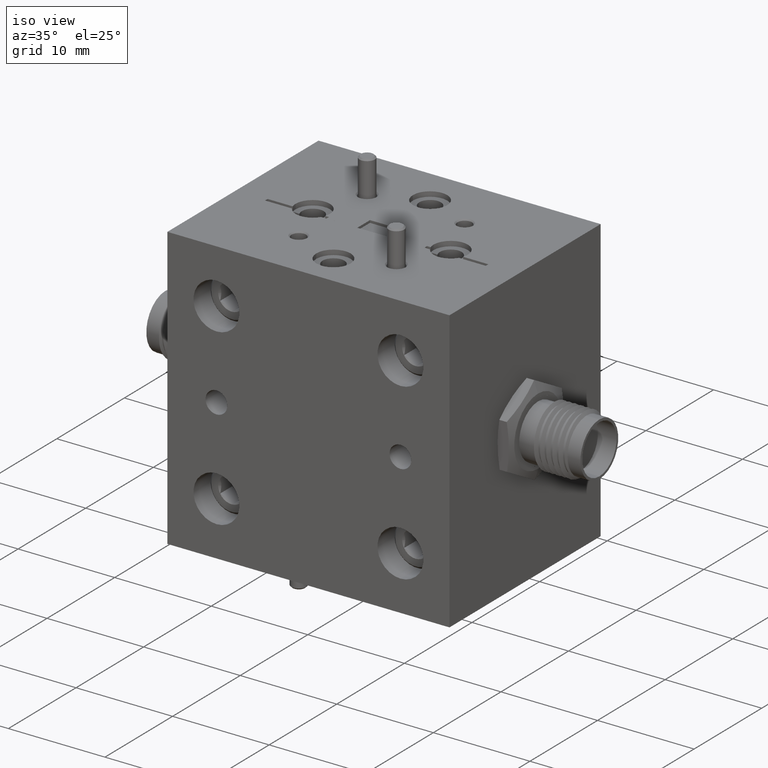
[diagram: clean part render]
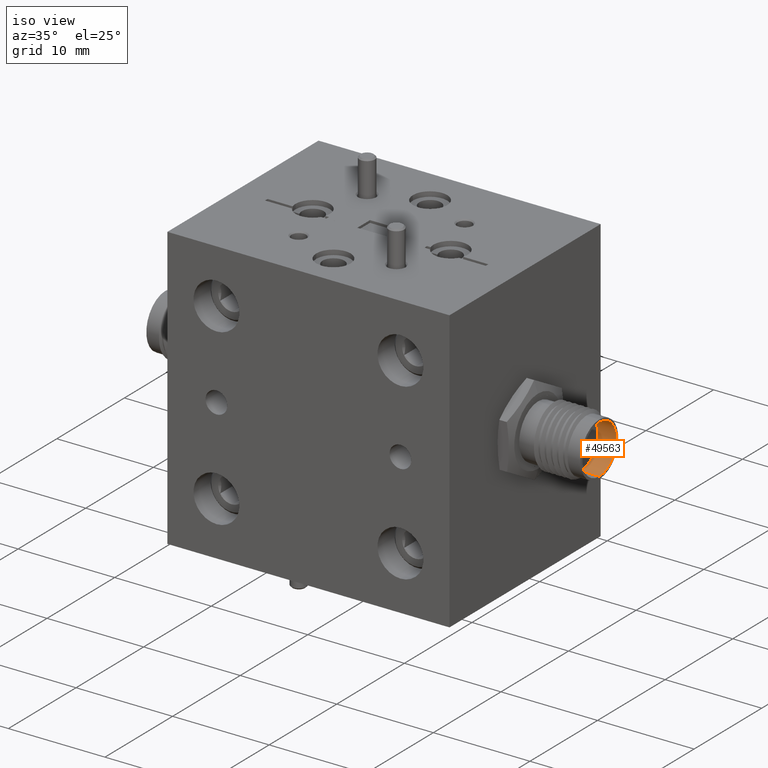
[diagram: same view with one face highlighted and labeled with its STEP entity id]
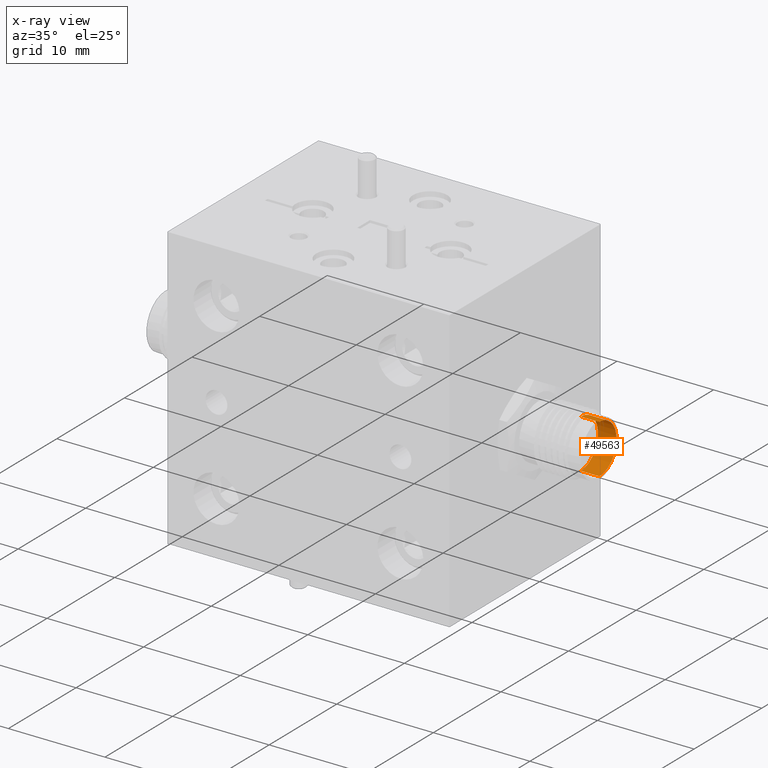
[diagram: x-ray of the same camera — body ghosted, the highlighted face saturated]
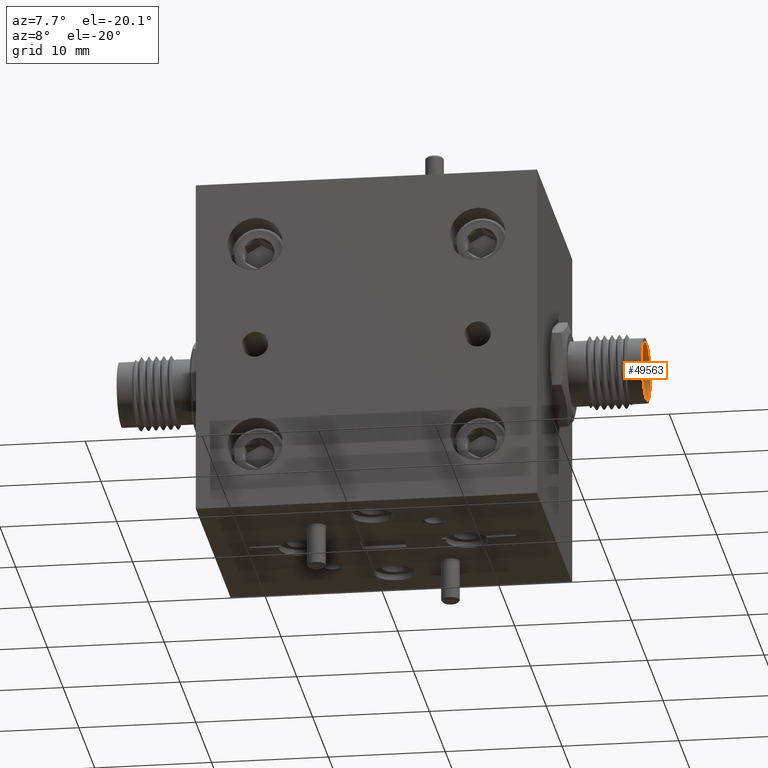
[diagram: same view with one face highlighted and labeled with its STEP entity id]
A machine part, iso view. The second image highlights one B-rep face of the part: STEP entity #49563.
The next image is the same camera in x-ray: the body ghosted, the highlighted face saturated — about 0% of this face is hidden behind the body in this view.
A second angle (auxiliary view) of the same face is appended — the face is thin or edge-on in the first view.
In plain terms, the highlighted cylindrical surface (edge-blend (fillet) strip) has radius 2.54 mm, axis along (1, 0, 0).
Its self-contained STEP definition (entity closure, byte-faithful):
#210 = VERTEX_POINT ( 'NONE', #12783 ) ;
#1971 = ORIENTED_EDGE ( 'NONE', *, *, #42961, .T. ) ;
#2467 = CARTESIAN_POINT ( 'NONE',  ( 0.8089999999999999414, 0.04000000000000127065, -0.09999999999999768796 ) ) ;
#2747 = CARTESIAN_POINT ( 'NONE',  ( 0.8089999999999999414, 0.04000000000000127759, 2.322070794614623834E-15 ) ) ;
#5723 = DIRECTION ( 'NONE',  ( 0.0000000000000000000, 0.0000000000000000000, 1.000000000000000000 ) ) ;
#9556 = DIRECTION ( 'NONE',  ( 1.000000000000000000, 1.999249380464845640E-17, 4.580144369132161867E-18 ) ) ;
#9702 = DIRECTION ( 'NONE',  ( 0.0000000000000000000, 0.0000000000000000000, 1.000000000000000000 ) ) ;
#9766 = VERTEX_POINT ( 'NONE', #21569 ) ;
#11035 = ORIENTED_EDGE ( 'NONE', *, *, #36503, .T. ) ;
#11288 = CARTESIAN_POINT ( 'NONE',  ( 0.8089999999999999414, 0.04000000000000127065, -0.09999999999999768796 ) ) ;
#11788 = LINE ( 'NONE', #11288, #24610 ) ;
#12783 = CARTESIAN_POINT ( 'NONE',  ( 0.8849999999999998979, 0.04000000000000127759, 0.1000000000000023370 ) ) ;
#13799 = AXIS2_PLACEMENT_3D ( 'NONE', #20628, #9556, #40388 ) ;
#13900 = VERTEX_POINT ( 'NONE', #2467 ) ;
#14692 = ORIENTED_EDGE ( 'NONE', *, *, #37743, .F. ) ;
#18678 = DIRECTION ( 'NONE',  ( 1.000000000000000000, 1.999249380464845640E-17, 4.580144369132161867E-18 ) ) ;
#20628 = CARTESIAN_POINT ( 'NONE',  ( 0.8849999999999998979, 0.04000000000000127759, 2.322070794614623834E-15 ) ) ;
#21569 = CARTESIAN_POINT ( 'NONE',  ( 0.8849999999999998979, 0.04000000000000127065, -0.09999999999999768796 ) ) ;
#24610 = VECTOR ( 'NONE', #42630, 39.37007874015748143 ) ;
#25190 = CARTESIAN_POINT ( 'NONE',  ( 0.8089999999999999414, 0.04000000000000127759, 0.1000000000000023370 ) ) ;
#25384 = VECTOR ( 'NONE', #25533, 39.37007874015748143 ) ;
#25533 = DIRECTION ( 'NONE',  ( 1.000000000000000000, 1.999249380464845640E-17, 4.580144369132161867E-18 ) ) ;
#25869 = EDGE_LOOP ( 'NONE', ( #14692, #11035, #1971, #50101 ) ) ;
#27845 = CIRCLE ( 'NONE', #46723, 0.1000000000000000056 ) ;
#28506 = CIRCLE ( 'NONE', #13799, 0.1000000000000000056 ) ;
#29393 = CARTESIAN_POINT ( 'NONE',  ( 0.8089999999999999414, 0.04000000000000127759, 2.322070794614623834E-15 ) ) ;
#29582 = VERTEX_POINT ( 'NONE', #25190 ) ;
#30000 = CYLINDRICAL_SURFACE ( 'NONE', #34473, 0.1000000000000000056 ) ;
#33492 = LINE ( 'NONE', #37844, #25384 ) ;
#34473 = AXIS2_PLACEMENT_3D ( 'NONE', #2747, #18678, #9702 ) ;
#35017 = EDGE_CURVE ( 'NONE', #29582, #210, #33492, .T. ) ;
#36503 = EDGE_CURVE ( 'NONE', #13900, #9766, #11788, .T. ) ;
#37587 = DIRECTION ( 'NONE',  ( 1.000000000000000000, 1.999249380464845640E-17, 4.580144369132161867E-18 ) ) ;
#37743 = EDGE_CURVE ( 'NONE', #13900, #29582, #27845, .T. ) ;
#37844 = CARTESIAN_POINT ( 'NONE',  ( 0.8089999999999999414, 0.04000000000000127759, 0.1000000000000023370 ) ) ;
#40388 = DIRECTION ( 'NONE',  ( 0.0000000000000000000, 0.0000000000000000000, 1.000000000000000000 ) ) ;
#42630 = DIRECTION ( 'NONE',  ( 1.000000000000000000, 1.999249380464845640E-17, 4.580144369132161867E-18 ) ) ;
#42961 = EDGE_CURVE ( 'NONE', #9766, #210, #28506, .T. ) ;
#46723 = AXIS2_PLACEMENT_3D ( 'NONE', #29393, #37587, #5723 ) ;
#49010 = FACE_OUTER_BOUND ( 'NONE', #25869, .T. ) ;
#49563 = ADVANCED_FACE ( 'NONE', ( #49010 ), #30000, .F. ) ;
#50101 = ORIENTED_EDGE ( 'NONE', *, *, #35017, .F. ) ;